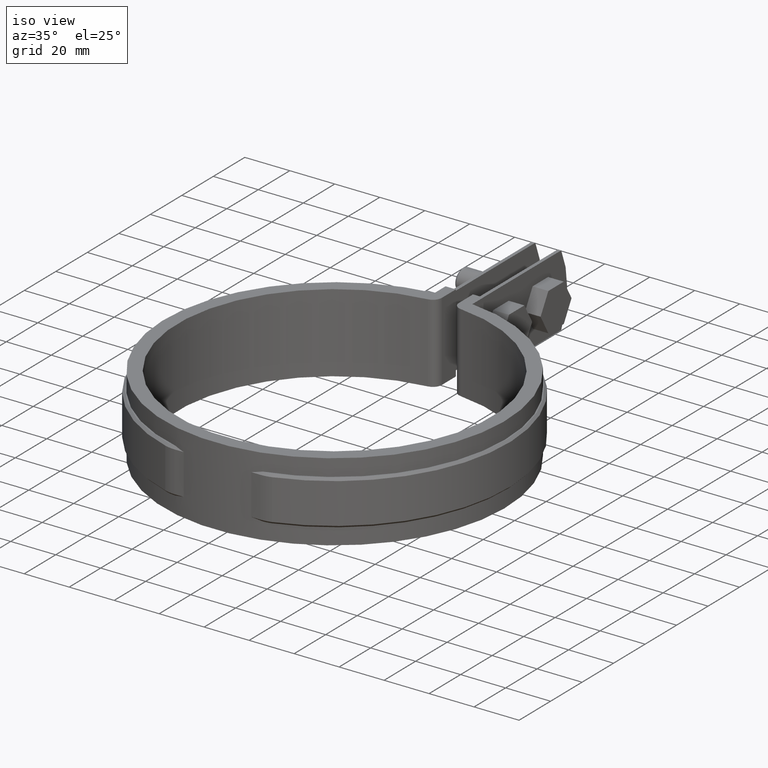
[diagram: clean part render]
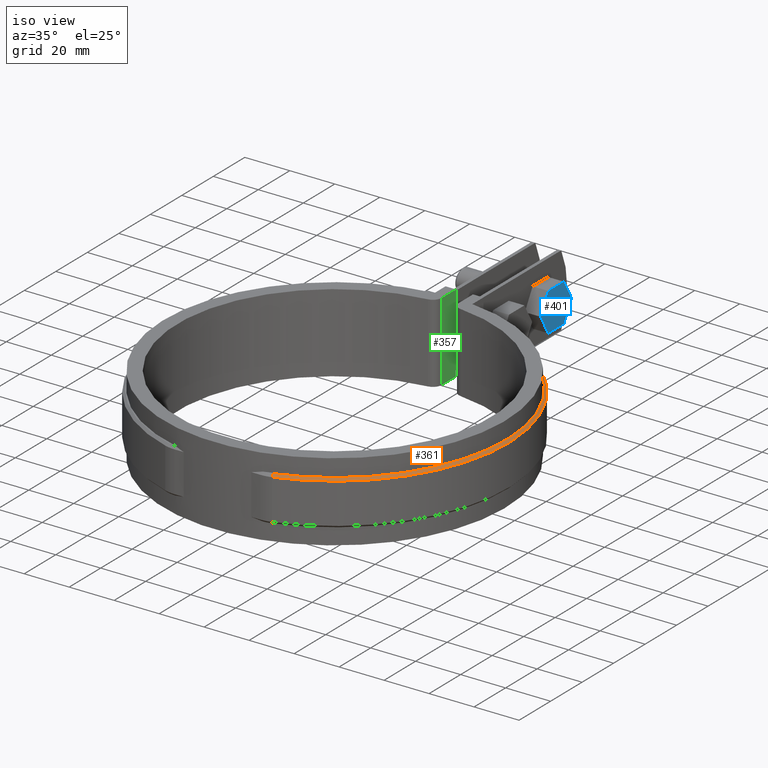
[diagram: same view with three faces highlighted in distinct colors, each labeled with its STEP entity id]
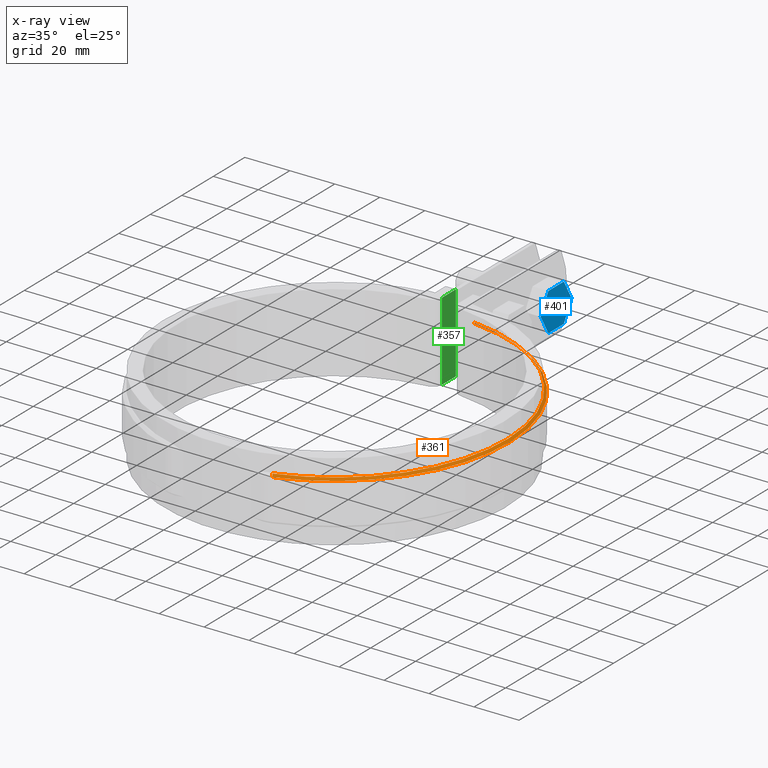
[diagram: x-ray of the same camera — body ghosted, the three highlighted faces saturated]
A machine part, iso view with three faces highlighted in distinct colors.
The next image is the same camera in x-ray (body ghosted, the three faces saturated) — at least one of them is partly hidden behind the body in this view.
Their STEP definitions:

[orange] entity #361 — the highlighted conical surface has half-angle 45 deg.
#361 = ADVANCED_FACE( '', ( #573 ), #574, .T. );
#573 = FACE_OUTER_BOUND( '', #1651, .T. );
#574 = CONICAL_SURFACE( '', #1652, 76.4000000000000, 0.785398163397450 );
#1651 = EDGE_LOOP( '', ( #3449, #3450, #3451, #3452 ) );
#1652 = AXIS2_PLACEMENT_3D( '', #3453, #3454, #3455 );
#3449 = ORIENTED_EDGE( '', *, *, #4801, .F. );
#3450 = ORIENTED_EDGE( '', *, *, #4808, .F. );
#3451 = ORIENTED_EDGE( '', *, *, #4809, .F. );
#3452 = ORIENTED_EDGE( '', *, *, #4810, .F. );
#3453 = CARTESIAN_POINT( '', ( 6.93889390390723E-015, -2.77555756156289E-014, -6.00000000000000 ) );
#3454 = DIRECTION( '', ( 0.000000000000000, 0.000000000000000, -1.00000000000000 ) );
#3455 = DIRECTION( '', ( -1.00000000000000, 0.000000000000000, 0.000000000000000 ) );
#4801 = EDGE_CURVE( '', #5354, #5340, #5356, .T. );
#4808 = EDGE_CURVE( '', #5367, #5354, #5368, .T. );
#4809 = EDGE_CURVE( '', #5369, #5367, #5370, .T. );
#4810 = EDGE_CURVE( '', #5340, #5369, #5371, .T. );
#5340 = VERTEX_POINT( '', #7870 );
#5354 = VERTEX_POINT( '', #7891 );
#5356 = B_SPLINE_CURVE_WITH_KNOTS( '', 3, ( #7894, #7895, #7896, #7897 ), .UNSPECIFIED., .F., .F., ( 4, 4 ), ( 707.205268659673, 707.206699169555 ), .UNSPECIFIED. );
#5367 = VERTEX_POINT( '', #7911 );
#5368 = CIRCLE( '', #7912, 76.4000000000000 );
#5369 = VERTEX_POINT( '', #7913 );
#5370 = LINE( '', #7914, #7915 );
#5371 = CIRCLE( '', #7916, 77.4000000000000 );
#7870 = CARTESIAN_POINT( '', ( 8.39999999999999, 76.9428359238207, -6.99999999999998 ) );
#7891 = CARTESIAN_POINT( '', ( 8.39999999999999, 75.9368158405394, -6.00000000000001 ) );
#7894 = CARTESIAN_POINT( '', ( 8.39999999999999, 75.9368158405042, -5.99999999996496 ) );
#7895 = CARTESIAN_POINT( '', ( 8.39999999999999, 76.2721690293135, -6.33332006986222 ) );
#7896 = CARTESIAN_POINT( '', ( 8.39999999999999, 76.6075088860364, -6.66665357559354 ) );
#7897 = CARTESIAN_POINT( '', ( 8.39999999999999, 76.9428359238296, -7.00000000000887 ) );
#7911 = CARTESIAN_POINT( '', ( 23.4041590270472, -72.7269230769231, -6.00000000000000 ) );
#7912 = AXIS2_PLACEMENT_3D( '', #8713, #8714, #8715 );
#7913 = CARTESIAN_POINT( '', ( 23.7104961870871, -73.6788461538462, -7.00000000000000 ) );
#7914 = CARTESIAN_POINT( '', ( 23.7104961870871, -73.6788461538462, -7.00000000000000 ) );
#7915 = VECTOR( '', #8716, 1000.00000000000 );
#7916 = AXIS2_PLACEMENT_3D( '', #8717, #8718, #8719 );
#8713 = CARTESIAN_POINT( '', ( 6.93889390390723E-015, -2.77555756156289E-014, -6.00000000000000 ) );
#8714 = DIRECTION( '', ( 0.000000000000000, 0.000000000000000, 1.00000000000000 ) );
#8715 = DIRECTION( '', ( 1.00000000000000, 0.000000000000000, 0.000000000000000 ) );
#8716 = DIRECTION( '', ( -0.216613083193632, 0.673111262860270, 0.707106781186548 ) );
#8717 = CARTESIAN_POINT( '', ( 6.93889390390723E-015, -2.77555756156289E-014, -6.99999999999998 ) );
#8718 = DIRECTION( '', ( 0.000000000000000, 0.000000000000000, -1.00000000000000 ) );
#8719 = DIRECTION( '', ( -1.00000000000000, 0.000000000000000, 0.000000000000000 ) );

[blue] entity #401 — the highlighted planar face has unit normal (-1, -0, -0).
#401 = ADVANCED_FACE( '', ( #655 ), #656, .F. );
#655 = FACE_OUTER_BOUND( '', #1733, .T. );
#656 = PLANE( '', #1734 );
#1733 = EDGE_LOOP( '', ( #4148, #4149, #4150, #4151, #4152, #4153 ) );
#1734 = AXIS2_PLACEMENT_3D( '', #4154, #4155, #4156 );
#4148 = ORIENTED_EDGE( '', *, *, #4885, .T. );
#4149 = ORIENTED_EDGE( '', *, *, #4888, .T. );
#4150 = ORIENTED_EDGE( '', *, *, #4889, .T. );
#4151 = ORIENTED_EDGE( '', *, *, #4890, .T. );
#4152 = ORIENTED_EDGE( '', *, *, #4891, .T. );
#4153 = ORIENTED_EDGE( '', *, *, #4892, .T. );
#4154 = CARTESIAN_POINT( '', ( 13.5000000000001, 106.574709848459, -24.5000000000001 ) );
#4155 = DIRECTION( '', ( -1.00000000000000, -6.02334540269725E-017, -6.46234853557053E-033 ) );
#4156 = DIRECTION( '', ( -6.02334540269725E-017, 1.00000000000000, 0.000000000000000 ) );
#4885 = EDGE_CURVE( '', #5484, #5482, #5485, .T. );
#4888 = EDGE_CURVE( '', #5482, #5487, #5489, .T. );
#4889 = EDGE_CURVE( '', #5487, #5490, #5491, .T. );
#4890 = EDGE_CURVE( '', #5490, #5492, #5493, .T. );
#4891 = EDGE_CURVE( '', #5492, #5494, #5495, .T. );
#4892 = EDGE_CURVE( '', #5494, #5484, #5496, .T. );
#5482 = VERTEX_POINT( '', #8088 );
#5484 = VERTEX_POINT( '', #8091 );
#5485 = LINE( '', #8092, #8093 );
#5487 = VERTEX_POINT( '', #8096 );
#5489 = LINE( '', #8099, #8100 );
#5490 = VERTEX_POINT( '', #8101 );
#5491 = LINE( '', #8102, #8103 );
#5492 = VERTEX_POINT( '', #8104 );
#5493 = LINE( '', #8105, #8106 );
#5494 = VERTEX_POINT( '', #8107 );
#5495 = LINE( '', #8108, #8109 );
#5496 = LINE( '', #8110, #8111 );
#8088 = CARTESIAN_POINT( '', ( 13.5000000000001, 126.204619000906, -24.5000000000001 ) );
#8091 = CARTESIAN_POINT( '', ( 13.5000000000001, 116.389664424682, -24.5000000000001 ) );
#8092 = CARTESIAN_POINT( '', ( 13.5000000000001, 116.389664424682, -24.5000000000001 ) );
#8093 = VECTOR( '', #8839, 1000.00000000000 );
#8096 = CARTESIAN_POINT( '', ( 13.5000000000001, 131.112096289018, -16.0000000000001 ) );
#8099 = CARTESIAN_POINT( '', ( 13.5000000000001, 126.204619000906, -24.5000000000001 ) );
#8100 = VECTOR( '', #8842, 1000.00000000000 );
#8101 = CARTESIAN_POINT( '', ( 13.5000000000001, 126.204619000906, -7.50000000000012 ) );
#8102 = CARTESIAN_POINT( '', ( 13.5000000000001, 131.112096289018, -16.0000000000001 ) );
#8103 = VECTOR( '', #8843, 1000.00000000000 );
#8104 = CARTESIAN_POINT( '', ( 13.5000000000001, 116.389664424682, -7.50000000000012 ) );
#8105 = CARTESIAN_POINT( '', ( 13.5000000000001, 126.204619000906, -7.50000000000012 ) );
#8106 = VECTOR( '', #8844, 1000.00000000000 );
#8107 = CARTESIAN_POINT( '', ( 13.5000000000001, 111.482187136571, -16.0000000000001 ) );
#8108 = CARTESIAN_POINT( '', ( 13.5000000000001, 116.389664424682, -7.50000000000012 ) );
#8109 = VECTOR( '', #8845, 1000.00000000000 );
#8110 = CARTESIAN_POINT( '', ( 13.5000000000001, 111.482187136571, -16.0000000000001 ) );
#8111 = VECTOR( '', #8846, 1000.00000000000 );
#8839 = DIRECTION( '', ( -6.02334540269725E-017, 1.00000000000000, -3.46944695195362E-016 ) );
#8842 = DIRECTION( '', ( -3.01167270134863E-017, 0.500000000000000, 0.866025403784439 ) );
#8843 = DIRECTION( '', ( 3.01167270134863E-017, -0.500000000000000, 0.866025403784439 ) );
#8844 = DIRECTION( '', ( 6.02334540269725E-017, -1.00000000000000, 1.38777878078146E-017 ) );
#8845 = DIRECTION( '', ( 3.01167270134863E-017, -0.500000000000000, -0.866025403784439 ) );
#8846 = DIRECTION( '', ( -3.01167270134862E-017, 0.500000000000000, -0.866025403784439 ) );

[green] entity #357 — the highlighted planar face has unit normal (1, -0, 0).
#357 = ADVANCED_FACE( '', ( #565 ), #566, .T. );
#565 = FACE_OUTER_BOUND( '', #1643, .T. );
#566 = PLANE( '', #1644 );
#1643 = EDGE_LOOP( '', ( #3409, #3410, #3411, #3412 ) );
#1644 = AXIS2_PLACEMENT_3D( '', #3413, #3414, #3415 );
#3409 = ORIENTED_EDGE( '', *, *, #4707, .T. );
#3410 = ORIENTED_EDGE( '', *, *, #4787, .F. );
#3411 = ORIENTED_EDGE( '', *, *, #4788, .F. );
#3412 = ORIENTED_EDGE( '', *, *, #4789, .T. );
#3413 = CARTESIAN_POINT( '', ( -3.80000000000000, 73.4872097714970, -32.0000000000000 ) );
#3414 = DIRECTION( '', ( 1.00000000000000, -4.16333634234434E-017, 0.000000000000000 ) );
#3415 = DIRECTION( '', ( 0.000000000000000, 0.000000000000000, 1.00000000000000 ) );
#4707 = EDGE_CURVE( '', #5183, #5181, #5184, .F. );
#4787 = EDGE_CURVE( '', #5330, #5181, #5331, .F. );
#4788 = EDGE_CURVE( '', #5332, #5330, #5333, .T. );
#4789 = EDGE_CURVE( '', #5332, #5183, #5334, .T. );
#5181 = VERTEX_POINT( '', #6785 );
#5183 = VERTEX_POINT( '', #6788 );
#5184 = LINE( '', #6789, #6790 );
#5330 = VERTEX_POINT( '', #7856 );
#5331 = LINE( '', #7857, #7858 );
#5332 = VERTEX_POINT( '', #7859 );
#5333 = LINE( '', #7860, #7861 );
#5334 = LINE( '', #7862, #7863 );
#6785 = CARTESIAN_POINT( '', ( -3.80000000000000, 82.4000000000000, 1.50000000000000 ) );
#6788 = CARTESIAN_POINT( '', ( -3.80000000000000, 82.4000000000000, -33.5000000000000 ) );
#6789 = CARTESIAN_POINT( '', ( -3.80000000000000, 82.4000000000000, -32.0000000000000 ) );
#6790 = VECTOR( '', #8609, 1000.00000000000 );
#7856 = CARTESIAN_POINT( '', ( -3.80000000000000, 73.4872097714970, 1.50000000000000 ) );
#7857 = CARTESIAN_POINT( '', ( -3.80000000000000, -1.37195810268054E-014, 1.50000000000000 ) );
#7858 = VECTOR( '', #8683, 1000.00000000000 );
#7859 = CARTESIAN_POINT( '', ( -3.80000000000000, 73.4872097714970, -33.5000000000000 ) );
#7860 = CARTESIAN_POINT( '', ( -3.80000000000000, 73.4872097714970, -32.0000000000000 ) );
#7861 = VECTOR( '', #8684, 1000.00000000000 );
#7862 = CARTESIAN_POINT( '', ( -3.80000000000000, 73.4872097714970, -33.5000000000000 ) );
#7863 = VECTOR( '', #8685, 1000.00000000000 );
#8609 = DIRECTION( '', ( 0.000000000000000, 0.000000000000000, -1.00000000000000 ) );
#8683 = DIRECTION( '', ( -4.16333634234434E-017, -1.00000000000000, 0.000000000000000 ) );
#8684 = DIRECTION( '', ( 0.000000000000000, 0.000000000000000, 1.00000000000000 ) );
#8685 = DIRECTION( '', ( 4.16333634234434E-017, 1.00000000000000, 0.000000000000000 ) );